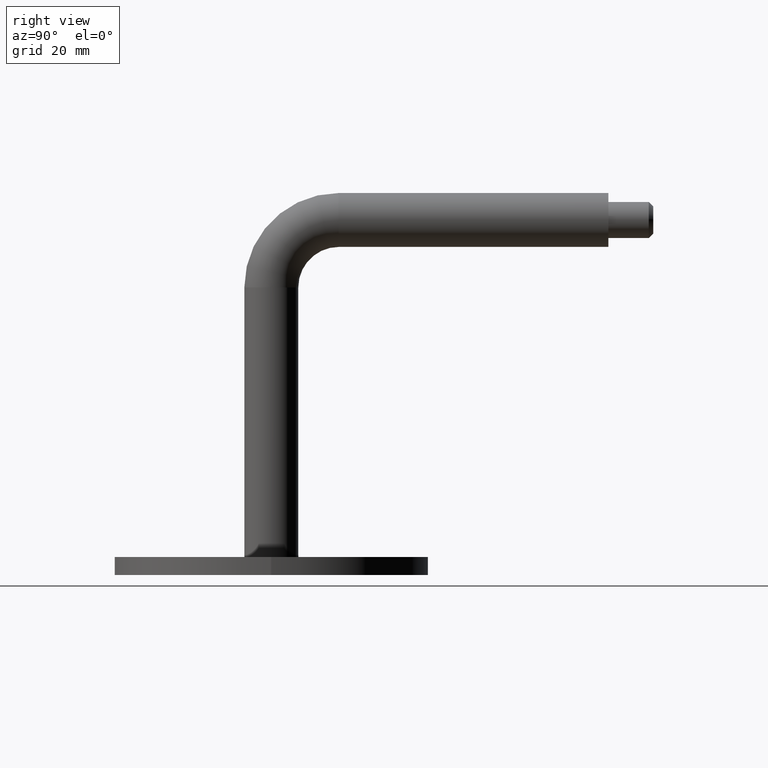
[diagram: clean part render]
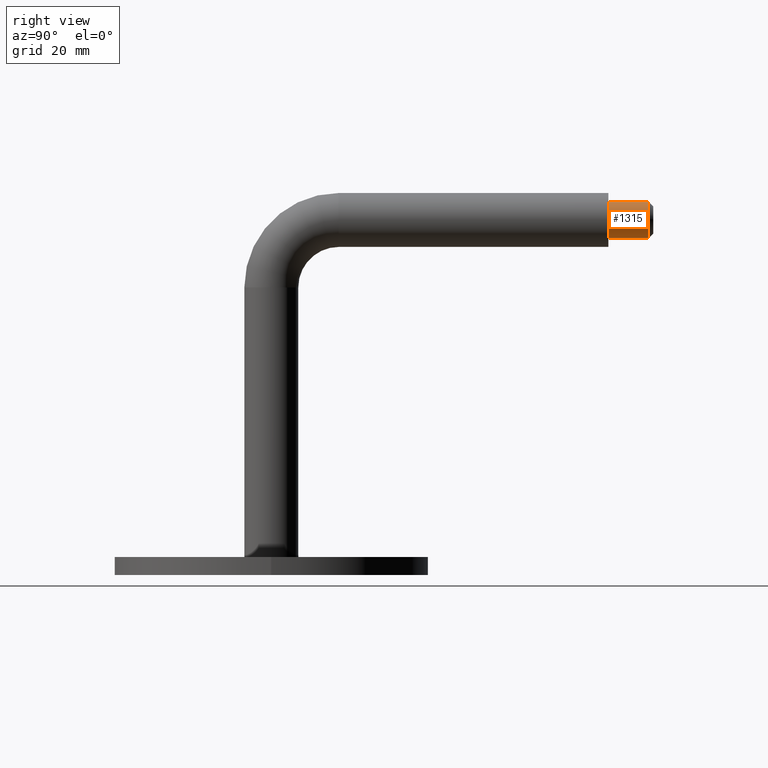
[diagram: same view with one face highlighted and labeled with its STEP entity id]
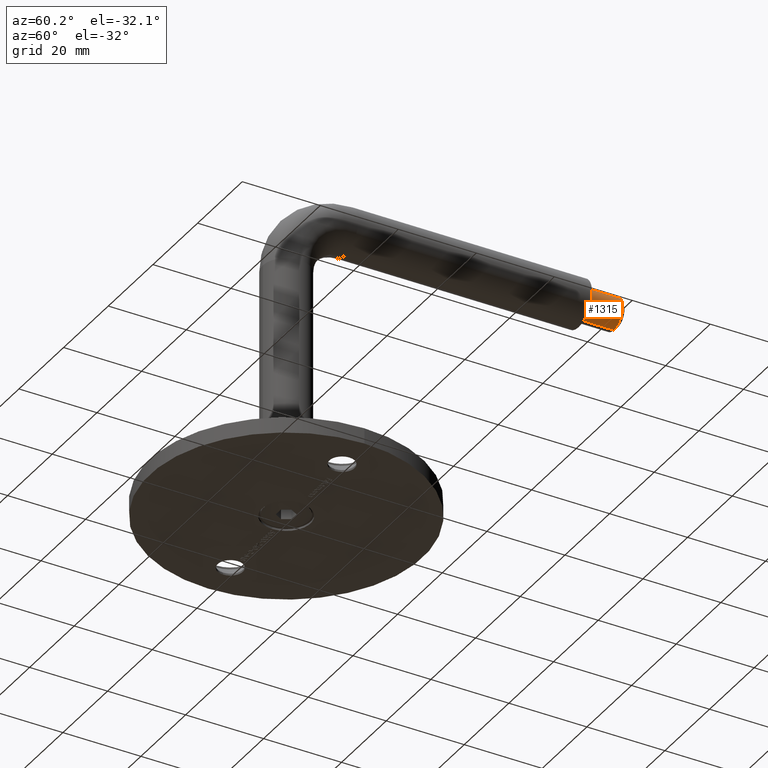
[diagram: same view with one face highlighted and labeled with its STEP entity id]
A machine part, right view. The second image highlights one B-rep face of the part: STEP entity #1315.
A second angle (auxiliary view) of the same face is appended — the face is thin or edge-on in the first view.
In plain terms, the highlighted cylindrical surface (edge-blend (fillet) strip) has radius 4 mm, axis along (-0, -1, -0).
Its self-contained STEP definition (entity closure, byte-faithful):
#1288 = DIRECTION ( 'NONE',  ( 0.000000000000000000, 0.000000000000000000, 1.000000000000000000 ) ) ;
#1315 = ADVANCED_FACE ( 'NONE', ( #12911 ), #1547, .T. ) ;
#1500 = CIRCLE ( 'NONE', #4330, 4.000000000000003553 ) ;
#1547 = CYLINDRICAL_SURFACE ( 'NONE', #11451, 4.000000000000003553 ) ;
#2969 = CARTESIAN_POINT ( 'NONE',  ( 4.898587196589413815E-16, 74.99999999999998579, 79.00000000000000000 ) ) ;
#4096 = DIRECTION ( 'NONE',  ( -0.000000000000000000, -1.000000000000000000, -6.123233995736766036E-17 ) ) ;
#4270 = DIRECTION ( 'NONE',  ( 0.000000000000000000, 0.000000000000000000, -1.000000000000000000 ) ) ;
#4330 = AXIS2_PLACEMENT_3D ( 'NONE', #17737, #11153, #1288 ) ;
#6631 = CIRCLE ( 'NONE', #18307, 4.000000000000003553 ) ;
#6879 = EDGE_LOOP ( 'NONE', ( #14269, #19064, #13245, #18150 ) ) ;
#7136 = VERTEX_POINT ( 'NONE', #17501 ) ;
#7891 = EDGE_CURVE ( 'NONE', #19674, #7136, #1500, .T. ) ;
#8910 = DIRECTION ( 'NONE',  ( 0.000000000000000000, 1.000000000000000000, 6.123233995736766036E-17 ) ) ;
#8997 = EDGE_CURVE ( 'NONE', #19674, #20742, #17944, .T. ) ;
#9051 = DIRECTION ( 'NONE',  ( 0.000000000000000000, 0.000000000000000000, 1.000000000000000000 ) ) ;
#9497 = DIRECTION ( 'NONE',  ( -0.000000000000000000, -1.000000000000000000, -6.123233995736766036E-17 ) ) ;
#10263 = VECTOR ( 'NONE', #9497, 1000.000000000000000 ) ;
#10910 = CARTESIAN_POINT ( 'NONE',  ( 0.000000000000000000, 84.99999999999997158, 75.00000000000000000 ) ) ;
#11153 = DIRECTION ( 'NONE',  ( 0.000000000000000000, -1.000000000000000000, 0.000000000000000000 ) ) ;
#11445 = VECTOR ( 'NONE', #4096, 1000.000000000000000 ) ;
#11451 = AXIS2_PLACEMENT_3D ( 'NONE', #10910, #17283, #4270 ) ;
#11643 = VERTEX_POINT ( 'NONE', #2969 ) ;
#12911 = FACE_OUTER_BOUND ( 'NONE', #6879, .T. ) ;
#13216 = CARTESIAN_POINT ( 'NONE',  ( 0.000000000000000000, 84.00000000000000000, 71.00000000000000000 ) ) ;
#13245 = ORIENTED_EDGE ( 'NONE', *, *, #17906, .T. ) ;
#14269 = ORIENTED_EDGE ( 'NONE', *, *, #7891, .T. ) ;
#15123 = CARTESIAN_POINT ( 'NONE',  ( 0.000000000000000000, 84.99999999999997158, 71.00000000000000000 ) ) ;
#17283 = DIRECTION ( 'NONE',  ( -0.000000000000000000, -1.000000000000000000, -6.123233995736766036E-17 ) ) ;
#17501 = CARTESIAN_POINT ( 'NONE',  ( 4.898587196589413815E-16, 84.00000000000000000, 79.00000000000000000 ) ) ;
#17737 = CARTESIAN_POINT ( 'NONE',  ( 0.000000000000000000, 84.00000000000000000, 75.00000000000000000 ) ) ;
#17906 = EDGE_CURVE ( 'NONE', #11643, #20742, #6631, .T. ) ;
#17944 = LINE ( 'NONE', #15123, #11445 ) ;
#18007 = LINE ( 'NONE', #19407, #10263 ) ;
#18150 = ORIENTED_EDGE ( 'NONE', *, *, #8997, .F. ) ;
#18307 = AXIS2_PLACEMENT_3D ( 'NONE', #19112, #8910, #9051 ) ;
#18740 = EDGE_CURVE ( 'NONE', #7136, #11643, #18007, .T. ) ;
#19064 = ORIENTED_EDGE ( 'NONE', *, *, #18740, .T. ) ;
#19112 = CARTESIAN_POINT ( 'NONE',  ( 0.000000000000000000, 74.99999999999998579, 75.00000000000000000 ) ) ;
#19407 = CARTESIAN_POINT ( 'NONE',  ( 4.898587196589415787E-16, 84.99999999999997158, 79.00000000000000000 ) ) ;
#19674 = VERTEX_POINT ( 'NONE', #13216 ) ;
#20742 = VERTEX_POINT ( 'NONE', #21124 ) ;
#21124 = CARTESIAN_POINT ( 'NONE',  ( 0.000000000000000000, 74.99999999999998579, 71.00000000000000000 ) ) ;